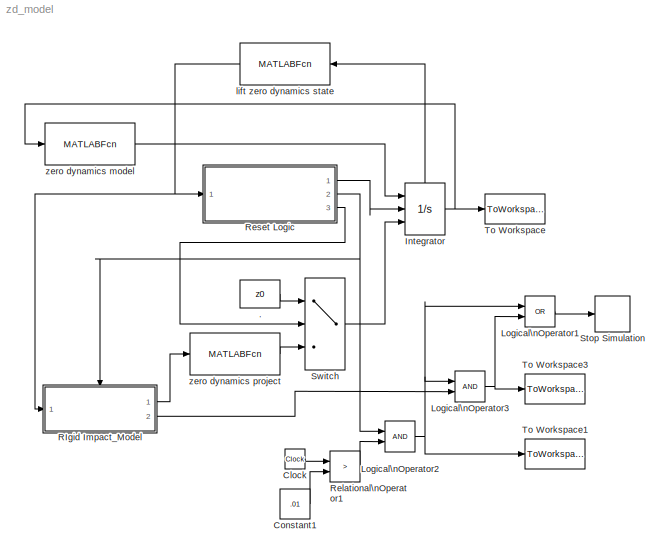
MODEL zd_model
KIND model
CONFIG AbsTol = 1e-6
CONFIG FixedStep = .001
CONFIG MaxStep = auto
CONFIG MinStep = auto
CONFIG RelTol = 1e-5
CONFIG Solver = ode45
CONFIG SolverMode = SingleTasking
CONFIG StartTime = 0.0
CONFIG StopTime = T
BLOCK [Constant] .
  Value = z0
  VectorParams1D = on
BLOCK [Clock] Clock
  Decimation = 10
  DisplayTime = off
BLOCK [Constant] Constant1
  Value = .01
  VectorParams1D = on
BLOCK [Integrator] Integrator
  AbsoluteTolerance = auto
  ExternalReset = rising
  InitialCondition = x_0
  InitialConditionSource = external
  LimitOutput = off
  LowerSaturationLimit = -inf
  Ports = [3, 1, 0, 0, 1]
  ShowSaturationPort = off
  ShowStatePort = on
  UpperSaturationLimit = inf
BLOCK [Logic] Logical\nOperator1
  Inputs = 2
  Operator = OR
  Ports = [2, 1]
BLOCK [Logic] Logical\nOperator2
  Inputs = 2
  Operator = AND
  Ports = [2, 1]
BLOCK [Logic] Logical\nOperator3
  Inputs = 2
  Operator = AND
  Ports = [2, 1]
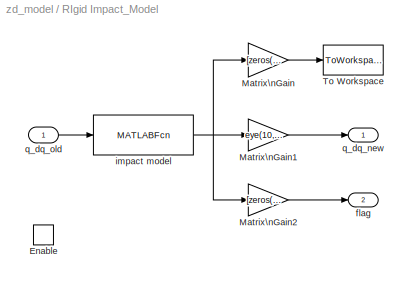
BLOCK [SubSystem] RIgid Impact_Model
  Ports = [1, 2, 1]
  RTWFcnNameOpts = Auto
  RTWFileNameOpts = Auto
  RTWSystemCode = Auto
  ShowPortLabels = on
  TreatAsAtomicUnit = on
BLOCK [EnablePort] RIgid Impact_Model/Enable
  Ports = []
  ShowOutputPort = off
  StatesWhenEnabling = held
BLOCK [Gain] RIgid Impact_Model/Matrix\nGain
  Gain = [zeros(1,11)  1 0]
  Multiplication = Matrix(K*u)
  SaturateOnIntegerOverflow = on
BLOCK [Gain] RIgid Impact_Model/Matrix\nGain1
  Gain = eye(10,13)
  Multiplication = Matrix(K*u)
  SaturateOnIntegerOverflow = on
BLOCK [Gain] RIgid Impact_Model/Matrix\nGain2
  Gain = [zeros(1,10) 1 0 0]
  Multiplication = Matrix(K*u)
  SaturateOnIntegerOverflow = on
BLOCK [ToWorkspace] RIgid Impact_Model/To Workspace
  Decimation = 1
  MaxDataPoints = inf
  SampleTime = -1
  SaveFormat = Array
  VariableName = mu
BLOCK [Outport] RIgid Impact_Model/flag
  InitialOutput = 0
  OutputWhenDisabled = held
  Port = 2
BLOCK [MATLABFcn] RIgid Impact_Model/impact model
  MATLABFcn = impact_abs_red
  Output1D = off
  OutputDimensions = 13
  OutputSignalType = auto
BLOCK [Outport] RIgid Impact_Model/q_dq_new
  InitialOutput = 0
  OutputWhenDisabled = held
  Port = 1
BLOCK [Inport] RIgid Impact_Model/q_dq_old
  Interpolate = on
  Port = 1
BLOCK [RelationalOperator] Relational\nOperator1
  Operator = >
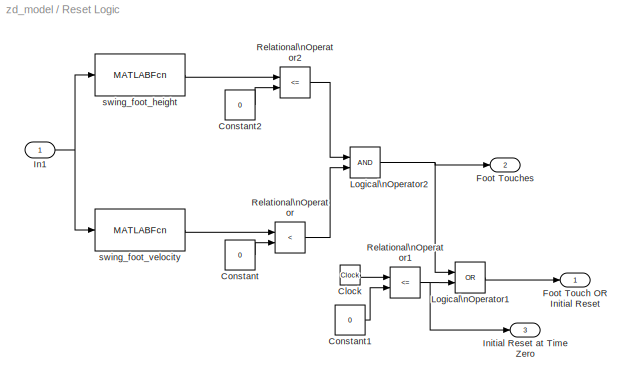
BLOCK [SubSystem] Reset Logic
  Ports = [1, 3]
  RTWFcnNameOpts = Auto
  RTWFileNameOpts = Auto
  RTWSystemCode = Auto
  ShowPortLabels = on
  TreatAsAtomicUnit = off
BLOCK [Clock] Reset Logic/Clock
  Decimation = 10
  DisplayTime = off
BLOCK [Constant] Reset Logic/Constant
  Value = 0
  VectorParams1D = on
BLOCK [Constant] Reset Logic/Constant1
  Value = 0
  VectorParams1D = on
BLOCK [Constant] Reset Logic/Constant2
  Value = 0
  VectorParams1D = on
BLOCK [Outport] Reset Logic/Foot Touch OR Initial Reset
  InitialOutput = 0
  OutputWhenDisabled = held
  Port = 1
BLOCK [Outport] Reset Logic/Foot Touches
  InitialOutput = 0
  OutputWhenDisabled = held
  Port = 2
BLOCK [Inport] Reset Logic/In1
  Interpolate = on
  Port = 1
BLOCK [Outport] Reset Logic/Initial Reset at Time Zero
  InitialOutput = 0
  OutputWhenDisabled = held
  Port = 3
BLOCK [Logic] Reset Logic/Logical\nOperator1
  Inputs = 2
  Operator = OR
  Ports = [2, 1]
BLOCK [Logic] Reset Logic/Logical\nOperator2
  Inputs = 2
  Operator = AND
  Ports = [2, 1]
BLOCK [RelationalOperator] Reset Logic/Relational\nOperator
  Operator = <
BLOCK [RelationalOperator] Reset Logic/Relational\nOperator1
  Operator = <=
BLOCK [RelationalOperator] Reset Logic/Relational\nOperator2
  Operator = <=
BLOCK [MATLABFcn] Reset Logic/swing_foot_height
  MATLABFcn = swing_foot_height
  Output1D = off
  OutputDimensions = 1
  OutputSignalType = auto
BLOCK [MATLABFcn] Reset Logic/swing_foot_velocity
  MATLABFcn = swing_foot_velocity
  Output1D = off
  OutputDimensions = 1
  OutputSignalType = auto
BLOCK [Stop] Stop Simulation
BLOCK [Switch] Switch
  Threshold = 0.5
BLOCK [ToWorkspace] To Workspace
  Decimation = 1
  MaxDataPoints = inf
  SampleTime = -1
  SaveFormat = Array
  VariableName = z
BLOCK [ToWorkspace] To Workspace1
  Decimation = 1
  MaxDataPoints = inf
  SampleTime = -1
  SaveFormat = Array
  VariableName = foot_touch
BLOCK [ToWorkspace] To Workspace3
  Decimation = 1
  MaxDataPoints = inf
  SampleTime = -1
  SaveFormat = Array
  VariableName = sim_error
BLOCK [MATLABFcn] lift zero dynamics state
  MATLABFcn = zd_lift_special
  Output1D = off
  OutputDimensions = 10
  OutputSignalType = auto
BLOCK [MATLABFcn] zero dynamics model
  MATLABFcn = zd
  Output1D = on
  OutputDimensions = 2
  OutputSignalType = auto
BLOCK [MATLABFcn] zero dynamics project
  MATLABFcn = zd_project
  Output1D = on
  OutputDimensions = 2
  OutputSignalType = auto
LINE .:1 -> Switch:1
LINE Clock:1 -> Relational\nOperator1:1
LINE Constant1:1 -> Relational\nOperator1:2
NET Integrator:1 -> To Workspace:1, zero dynamics model:1
LINE Integrator:state -> lift zero dynamics state:1
LINE Logical\nOperator1:1 -> Stop Simulation:1
NET Logical\nOperator2:1 -> Logical\nOperator1:1, Logical\nOperator3:1, To Workspace1:1
NET Logical\nOperator3:1 -> Logical\nOperator1:2, To Workspace3:1
LINE RIgid Impact_Model/Matrix\nGain1:1 -> RIgid Impact_Model/q_dq_new:1
LINE RIgid Impact_Model/Matrix\nGain2:1 -> RIgid Impact_Model/flag:1
LINE RIgid Impact_Model/Matrix\nGain:1 -> RIgid Impact_Model/To Workspace:1
NET RIgid Impact_Model/impact model:1 -> RIgid Impact_Model/Matrix\nGain1:1, RIgid Impact_Model/Matrix\nGain2:1, RIgid Impact_Model/Matrix\nGain:1
LINE RIgid Impact_Model/q_dq_old:1 -> RIgid Impact_Model/impact model:1
LINE RIgid Impact_Model:1 -> zero dynamics project:1
LINE RIgid Impact_Model:2 -> Logical\nOperator3:2
LINE Relational\nOperator1:1 -> Logical\nOperator2:2
LINE Reset Logic/Clock:1 -> Reset Logic/Relational\nOperator1:1
LINE Reset Logic/Constant1:1 -> Reset Logic/Relational\nOperator1:2
LINE Reset Logic/Constant2:1 -> Reset Logic/Relational\nOperator2:2
LINE Reset Logic/Constant:1 -> Reset Logic/Relational\nOperator:2
NET Reset Logic/In1:1 -> Reset Logic/swing_foot_height:1, Reset Logic/swing_foot_velocity:1
LINE Reset Logic/Logical\nOperator1:1 -> Reset Logic/Foot Touch OR Initial Reset:1
NET Reset Logic/Logical\nOperator2:1 -> Reset Logic/Foot Touches:1, Reset Logic/Logical\nOperator1:1
NET Reset Logic/Relational\nOperator1:1 -> Reset Logic/Initial Reset at Time Zero:1, Reset Logic/Logical\nOperator1:2
LINE Reset Logic/Relational\nOperator2:1 -> Reset Logic/Logical\nOperator2:1
LINE Reset Logic/Relational\nOperator:1 -> Reset Logic/Logical\nOperator2:2
LINE Reset Logic/swing_foot_height:1 -> Reset Logic/Relational\nOperator2:1
LINE Reset Logic/swing_foot_velocity:1 -> Reset Logic/Relational\nOperator:1
LINE Reset Logic:1 -> Integrator:2
NET Reset Logic:2 -> Logical\nOperator2:1, RIgid Impact_Model:enable
LINE Reset Logic:3 -> Switch:2
LINE Switch:1 -> Integrator:3
NET lift zero dynamics state:1 -> RIgid Impact_Model:1, Reset Logic:1
LINE zero dynamics model:1 -> Integrator:1
LINE zero dynamics project:1 -> Switch:3
note: NET lines group one-source signal fan-out (src -> all destinations, sorted); 1:1 wires keep LINE
